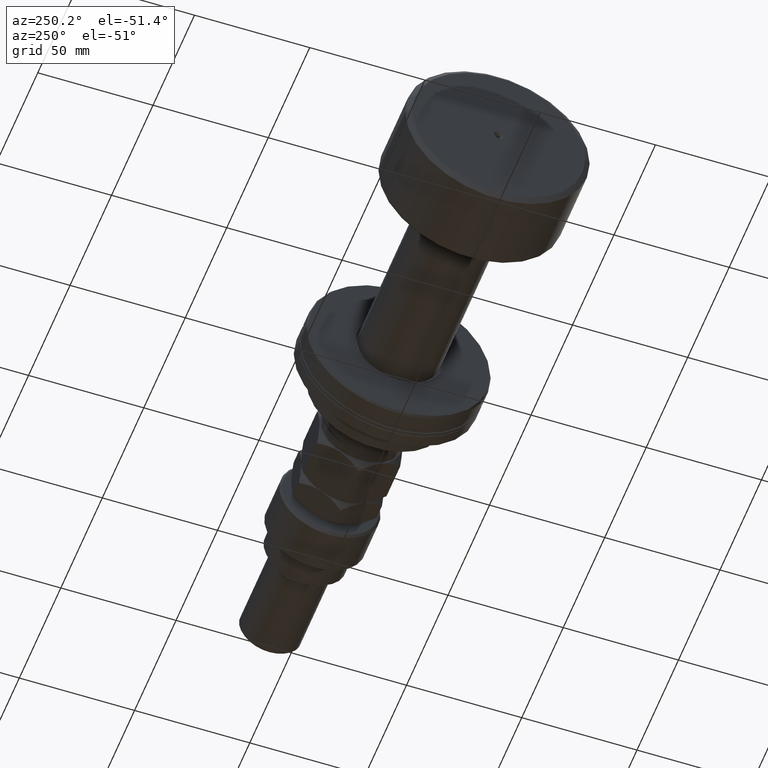
[diagram: clean part render]
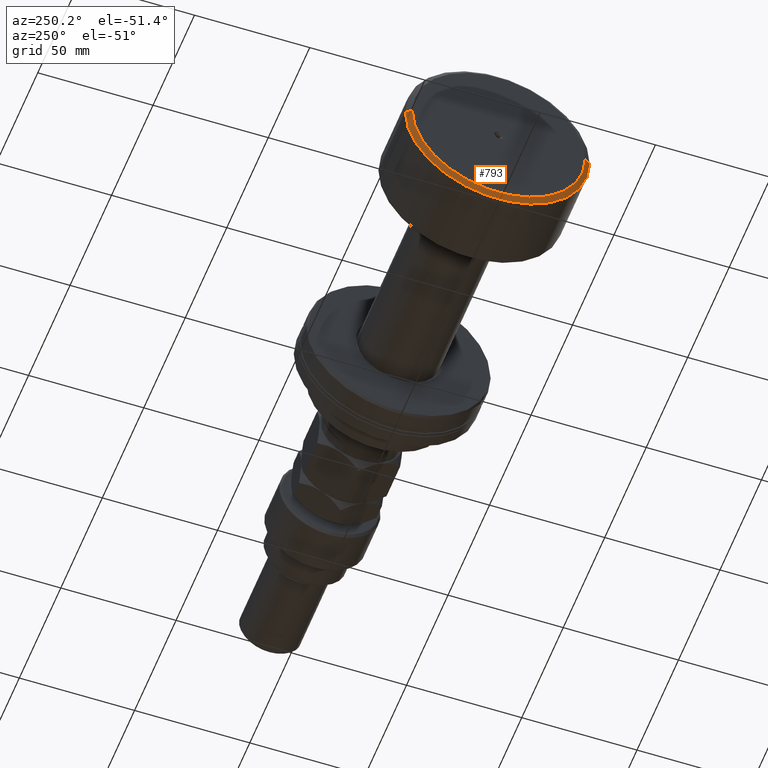
[diagram: same view with one face highlighted and labeled with its STEP entity id]
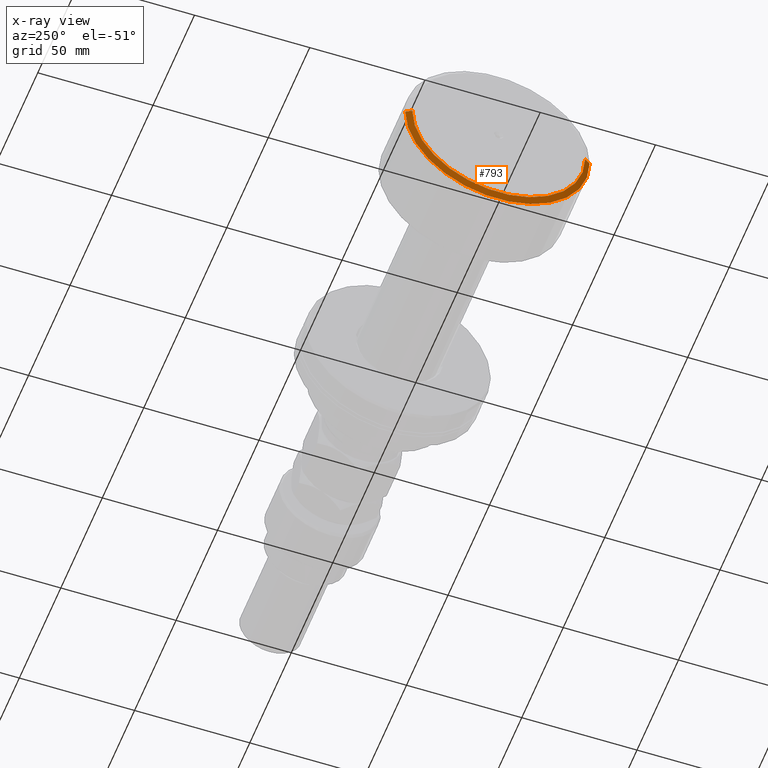
[diagram: x-ray of the same camera — body ghosted, the highlighted face saturated]
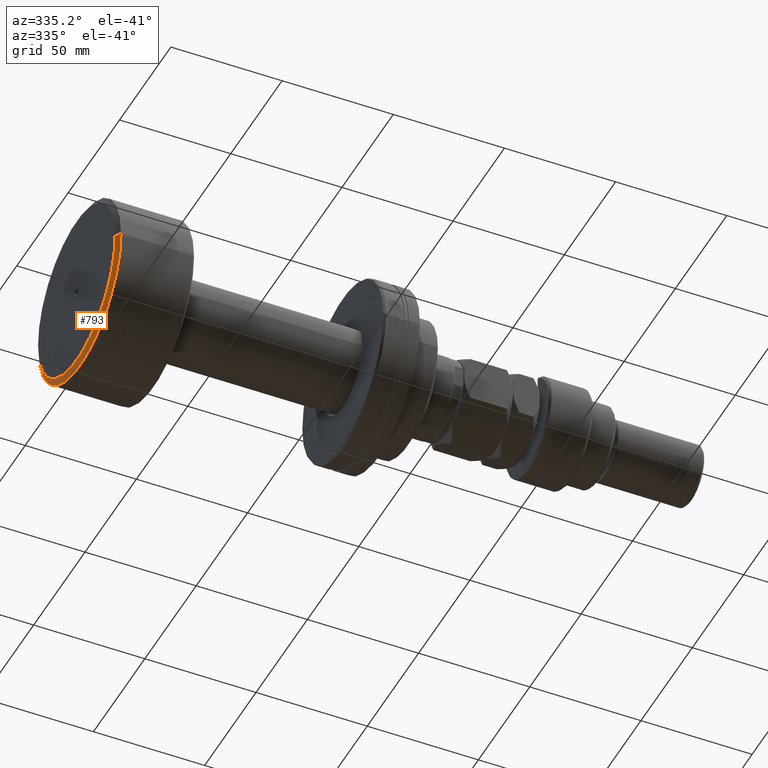
[diagram: same view with one face highlighted and labeled with its STEP entity id]
A machine part, auxiliary view. The second image highlights one B-rep face of the part: STEP entity #793.
The next image is the same camera in x-ray: the body ghosted, the highlighted face saturated — about 0% of this face is hidden behind the body in this view.
A second angle (auxiliary view) of the same face is appended — the face is thin or edge-on in the first view.
In plain terms, the highlighted conical surface has half-angle 59.036 deg.
Its self-contained STEP definition (entity closure, byte-faithful):
#198 = CONICAL_SURFACE ( 'NONE', #3121, 37.49999999999999289, 1.030376826524312728 ) ;
#210 = LINE ( 'NONE', #3900, #3298 ) ;
#317 = DIRECTION ( 'NONE',  ( 0.5144957554275262357, 0.8574929257125444293, 0.000000000000000000 ) ) ;
#360 = DIRECTION ( 'NONE',  ( 1.000000000000000000, 1.069542322069065801E-17, 0.000000000000000000 ) ) ;
#375 = DIRECTION ( 'NONE',  ( -1.000000000000000000, -1.069542322069065801E-17, -0.000000000000000000 ) ) ;
#383 = VERTEX_POINT ( 'NONE', #1287 ) ;
#397 = CIRCLE ( 'NONE', #2810, 39.99999999999999289 ) ;
#540 = EDGE_CURVE ( 'NONE', #383, #2591, #2612, .T. ) ;
#622 = ORIENTED_EDGE ( 'NONE', *, *, #2649, .F. ) ;
#672 = CARTESIAN_POINT ( 'NONE',  ( 1.500000000000005107, -39.99999999999999289, 4.898587196589412237E-15 ) ) ;
#793 = ADVANCED_FACE ( 'NONE', ( #2332 ), #198, .T. ) ;
#1050 = VECTOR ( 'NONE', #4501, 999.9999999999998863 ) ;
#1076 = VERTEX_POINT ( 'NONE', #672 ) ;
#1287 = CARTESIAN_POINT ( 'NONE',  ( 3.790268755250773542E-15, 37.49999999999999289, 0.000000000000000000 ) ) ;
#1419 = DIRECTION ( 'NONE',  ( 1.069542322069066725E-17, -1.000000000000000000, 0.000000000000000000 ) ) ;
#1663 = EDGE_CURVE ( 'NONE', #383, #3057, #210, .T. ) ;
#1955 = DIRECTION ( 'NONE',  ( 1.084202172485504588E-17, -1.000000000000000000, 0.000000000000000000 ) ) ;
#2010 = CARTESIAN_POINT ( 'NONE',  ( 4.592425496802573578E-15, -37.49999999999999289, 4.745506346695992513E-15 ) ) ;
#2023 = AXIS2_PLACEMENT_3D ( 'NONE', #2229, #3314, #1419 ) ;
#2229 = CARTESIAN_POINT ( 'NONE',  ( 4.191347126026673560E-15, 4.482823137768074044E-32, 0.000000000000000000 ) ) ;
#2295 = ORIENTED_EDGE ( 'NONE', *, *, #540, .F. ) ;
#2332 = FACE_OUTER_BOUND ( 'NONE', #4142, .T. ) ;
#2591 = VERTEX_POINT ( 'NONE', #2010 ) ;
#2612 = CIRCLE ( 'NONE', #2023, 37.49999999999999289 ) ;
#2649 = EDGE_CURVE ( 'NONE', #2591, #1076, #4839, .T. ) ;
#2810 = AXIS2_PLACEMENT_3D ( 'NONE', #3953, #375, #1955 ) ;
#2875 = CARTESIAN_POINT ( 'NONE',  ( 4.592425496802573578E-15, -37.49999999999999289, 4.592425496802573578E-15 ) ) ;
#2933 = ORIENTED_EDGE ( 'NONE', *, *, #4436, .T. ) ;
#3057 = VERTEX_POINT ( 'NONE', #3218 ) ;
#3121 = AXIS2_PLACEMENT_3D ( 'NONE', #3940, #360, #4892 ) ;
#3153 = ORIENTED_EDGE ( 'NONE', *, *, #1663, .T. ) ;
#3218 = CARTESIAN_POINT ( 'NONE',  ( 1.500000000000004219, 39.99999999999999289, 0.000000000000000000 ) ) ;
#3298 = VECTOR ( 'NONE', #317, 999.9999999999998863 ) ;
#3314 = DIRECTION ( 'NONE',  ( -1.000000000000000000, -1.069542322069065801E-17, -0.000000000000000000 ) ) ;
#3900 = CARTESIAN_POINT ( 'NONE',  ( 3.790268755250773542E-15, 37.49999999999999289, 0.000000000000000000 ) ) ;
#3940 = CARTESIAN_POINT ( 'NONE',  ( 4.191347126026673560E-15, 4.482823137768074044E-32, 0.000000000000000000 ) ) ;
#3953 = CARTESIAN_POINT ( 'NONE',  ( 1.500000000000004663, 1.604313483103603400E-17, 0.000000000000000000 ) ) ;
#4142 = EDGE_LOOP ( 'NONE', ( #622, #2295, #3153, #2933 ) ) ;
#4436 = EDGE_CURVE ( 'NONE', #3057, #1076, #397, .T. ) ;
#4501 = DIRECTION ( 'NONE',  ( 0.5144957554275262357, -0.8574929257125444293, 1.050125966765366654E-16 ) ) ;
#4839 = LINE ( 'NONE', #2875, #1050 ) ;
#4892 = DIRECTION ( 'NONE',  ( -1.069542322069066725E-17, 1.000000000000000000, 0.000000000000000000 ) ) ;